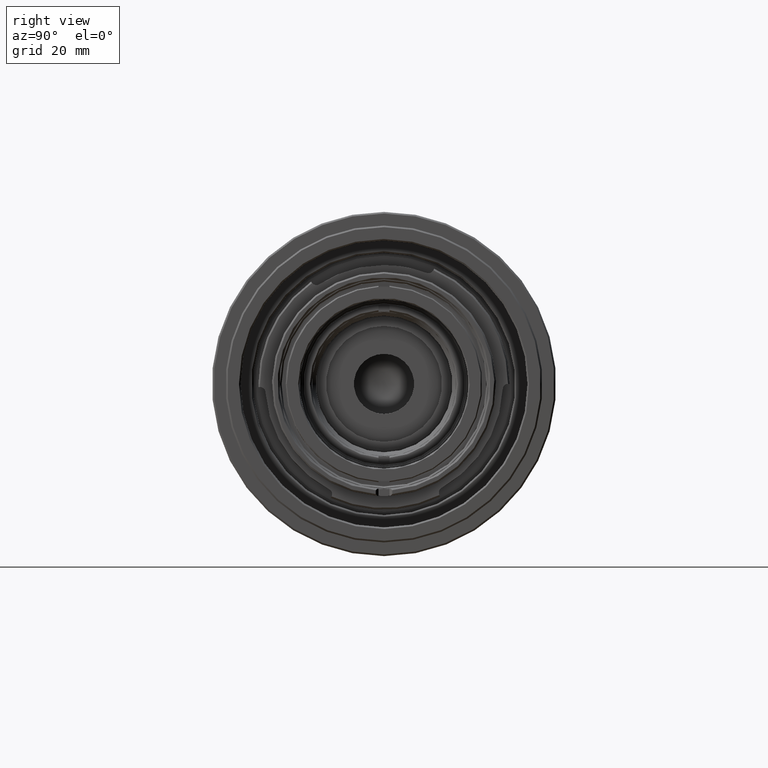
[diagram: clean part render]
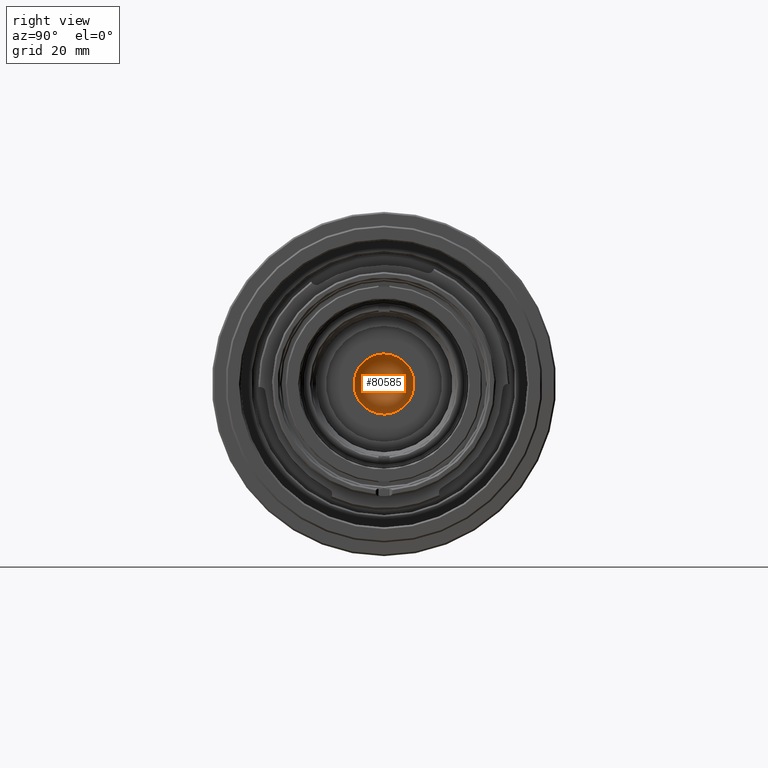
[diagram: same view with one face highlighted and labeled with its STEP entity id]
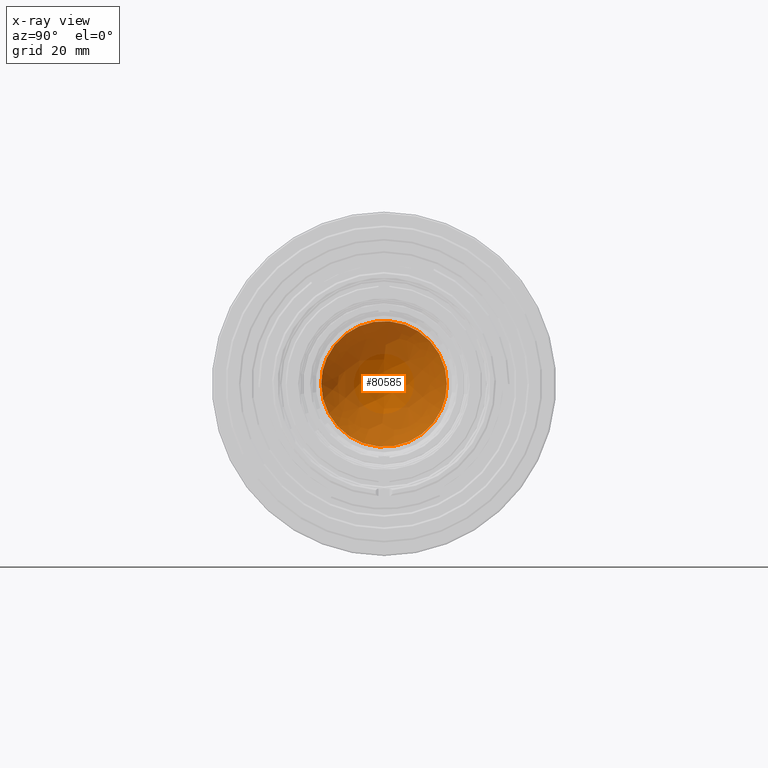
[diagram: x-ray of the same camera — body ghosted, the highlighted face saturated]
A machine part, right view. The second image highlights one B-rep face of the part: STEP entity #80585.
The next image is the same camera in x-ray: the body ghosted, the highlighted face saturated — about 77% of this face is hidden behind the body in this view.
In plain terms, the highlighted face is a freeform B-spline surface patch.
Its self-contained STEP definition (entity closure, byte-faithful):
#255 = CARTESIAN_POINT ( 'NONE',  ( -44.80845247734860900, -5.753007191074592800, -9.964664134588682400 ) ) ;
#1077 = CARTESIAN_POINT ( 'NONE',  ( -44.80845247734863100, 10.47788335748233200, -4.754593564172933100 ) ) ;
#3640 = CARTESIAN_POINT ( 'NONE',  ( -44.80845247734861700, 9.356293689348728300, 6.697082525206049300 ) ) ;
#4741 = CARTESIAN_POINT ( 'NONE',  ( -44.80845247734865200, 1.503754232936605800, 11.42634325561703400 ) ) ;
#5011 = CARTESIAN_POINT ( 'NONE',  ( -44.80845247734862400, -10.91137198061392000, 3.709559371525866600 ) ) ;
#6642 = VERTEX_POINT ( 'NONE', #47485 ) ;
#6680 = CARTESIAN_POINT ( 'NONE',  ( -44.80845247734862400, 5.084355458690351900, -10.32191706600309000 ) ) ;
#9891 = CARTESIAN_POINT ( 'NONE',  ( -54.84351934957655300, -5.004728254012164300, -5.768144989049128300 ) ) ;
#10030 = CARTESIAN_POINT ( 'NONE',  ( -44.80845247734862400, 5.089168799637594300, 10.31949533574741700 ) ) ;
#10579 = CARTESIAN_POINT ( 'NONE',  ( -44.80845247734862400, 7.022273019978745100, 9.138341699617182500 ) ) ;
#11403 = CARTESIAN_POINT ( 'NONE',  ( -44.80845247734862400, -1.872532536645306700, 11.35274921225121300 ) ) ;
#11633 = CARTESIAN_POINT ( 'NONE',  ( -44.80845247734861700, 11.49999897425665900, -1.260052562757507000E-015 ) ) ;
#11706 = CARTESIAN_POINT ( 'NONE',  ( -44.80845247734861700, -11.49999897425633200, -1.260052562757506600E-015 ) ) ;
#11934 = CARTESIAN_POINT ( 'NONE',  ( -44.80845247734862400, -11.42383983896479000, 1.519866178225232100 ) ) ;
#12351 = ORIENTED_EDGE ( 'NONE', *, *, #48961, .T. ) ;
#13049 = CARTESIAN_POINT ( 'NONE',  ( -44.80845247734862400, 7.007805545310112000, -9.148885702293814100 ) ) ;
#13332 = CARTESIAN_POINT ( 'NONE',  ( -44.80845247734862400, 9.764901558766236900, -6.085798936411796600 ) ) ;
#13604 = CARTESIAN_POINT ( 'NONE',  ( -44.80845247734862400, 2.978669706432953900, -11.13295866625508700 ) ) ;
#15870 = CARTESIAN_POINT ( 'NONE',  ( -44.80845247734861700, 11.49999897425665900, -1.260052562757507000E-015 ) ) ;
#15963 = VERTEX_POINT ( 'NONE', #11633 ) ;
#16015 = CARTESIAN_POINT ( 'NONE',  ( -54.84351934957655300, -5.004728254012164300, 5.768144989049122100 ) ) ;
#16411 = CARTESIAN_POINT ( 'NONE',  ( -44.80845247734860900, 2.985843278057903400, 11.11198426814783600 ) ) ;
#17521 = CARTESIAN_POINT ( 'NONE',  ( -44.80845247734862400, -3.695500496802925500, 10.91606960928534800 ) ) ;
#18061 = CARTESIAN_POINT ( 'NONE',  ( -44.80845247734862400, -4.739686864335111800, 10.48461614190675400 ) ) ;
#18101 = CARTESIAN_POINT ( 'NONE',  ( -44.80845247734860900, -11.11541532396850900, -2.973207052530145100 ) ) ;
#18335 = CARTESIAN_POINT ( 'NONE',  ( -44.80845247734861700, -11.49999897425633200, -1.260052562757506600E-015 ) ) ;
#19981 = CARTESIAN_POINT ( 'NONE',  ( -44.80845247734862400, 6.072965266795336000, -9.772892980732624600 ) ) ;
#21836 = CARTESIAN_POINT ( 'NONE',  ( -54.84351934957655300, 5.004728254012490200, 5.768144989049122100 ) ) ;
#22103 = CARTESIAN_POINT ( 'NONE',  ( -41.20107511579377800, 11.60323881107214200, -7.670401491549866600 ) ) ;
#22235 = CARTESIAN_POINT ( 'NONE',  ( -44.80845247734860900, 8.649844691849267500, 7.587743733534392900 ) ) ;
#22506 = CARTESIAN_POINT ( 'NONE',  ( -44.80845247734861700, 11.49999897425666400, 0.7596756894327033600 ) ) ;
#23627 = CARTESIAN_POINT ( 'NONE',  ( -44.80845247734862400, -10.47788335748201200, 4.754593564172932200 ) ) ;
#23937 = CARTESIAN_POINT ( 'NONE',  ( -44.80845247734859500, -8.396810706478854400, -7.866653003058684300 ) ) ;
#25821 = CARTESIAN_POINT ( 'NONE',  ( -44.80845247734858800, 0.7430977885588243600, -11.48221245707096600 ) ) ;
#26093 = CARTESIAN_POINT ( 'NONE',  ( -44.80845247734861700, -1.503754232936272100, -11.42634325561703400 ) ) ;
#26390 = CARTESIAN_POINT ( 'NONE',  ( -44.80845247734863100, 5.750702967758655000, -9.966045239932046900 ) ) ;
#27987 = CARTESIAN_POINT ( 'NONE',  ( -46.20065371288437500, 11.60323881107214200, 3.315238658489042800 ) ) ;
#28520 = CARTESIAN_POINT ( 'NONE',  ( -46.20065371288437500, -11.60323881107181500, 3.315238658489042800 ) ) ;
#28798 = CARTESIAN_POINT ( 'NONE',  ( -46.14481099012807200, -5.004728254012163400, 13.34564189343853800 ) ) ;
#28935 = CARTESIAN_POINT ( 'NONE',  ( -44.80845247734860900, 8.396810706479181300, 7.866653003058684300 ) ) ;
#29219 = CARTESIAN_POINT ( 'NONE',  ( -44.80845247734862400, 4.411244301982008200, 10.64005880782502800 ) ) ;
#30577 = CARTESIAN_POINT ( 'NONE',  ( -44.80845247734861700, -2.978669706432626600, 11.13295866625508200 ) ) ;
#30894 = CARTESIAN_POINT ( 'NONE',  ( -44.80845247734860900, -7.601137461462596600, -8.662298662141459700 ) ) ;
#31121 = CARTESIAN_POINT ( 'NONE',  ( -44.80845247734861700, -6.072965266795002900, 9.772892980732626400 ) ) ;
#31705 = CARTESIAN_POINT ( 'NONE',  ( -44.80845247734862400, 0.3671815992923235800, -11.50024971761664700 ) ) ;
#32250 = CARTESIAN_POINT ( 'NONE',  ( -44.80845247734860900, 4.739686864335436000, -10.48461614190675600 ) ) ;
#32512 = CARTESIAN_POINT ( 'NONE',  ( -44.80845247734861700, 1.872532536645636500, -11.35274921225121300 ) ) ;
#34109 = CARTESIAN_POINT ( 'NONE',  ( -41.20107511579377800, -11.60323881107181500, 7.670401491549870200 ) ) ;
#34667 = CARTESIAN_POINT ( 'NONE',  ( -46.14481099012807200, 5.004728254012490200, 13.34564189343853800 ) ) ;
#35910 = CARTESIAN_POINT ( 'NONE',  ( -44.80845247734861700, 10.76808924850741200, 4.054658041627607000 ) ) ;
#36979 = CARTESIAN_POINT ( 'NONE',  ( -44.80845247734862400, -9.764901558765904700, 6.085798936411786800 ) ) ;
#37238 = CARTESIAN_POINT ( 'NONE',  ( -44.80845247734858800, -0.7430977885584984000, 11.48221245707096300 ) ) ;
#37800 = CARTESIAN_POINT ( 'NONE',  ( -44.80845247734862400, -10.33524695578402400, -5.099091363435663400 ) ) ;
#38335 = CARTESIAN_POINT ( 'NONE',  ( -44.80845247734862400, -5.089168799637262100, -10.31949533574742300 ) ) ;
#38603 = CARTESIAN_POINT ( 'NONE',  ( -44.80845247734862400, 10.31454420866638200, -5.099253145948832600 ) ) ;
#42236 = CARTESIAN_POINT ( 'NONE',  ( -44.80845247734861700, 9.982080396363830500, 5.759576854239103500 ) ) ;
#43047 = CARTESIAN_POINT ( 'NONE',  ( -44.80845247734862400, -5.084355458690027700, 10.32191706600309400 ) ) ;
#43579 = CARTESIAN_POINT ( 'NONE',  ( -44.80845247734862400, -8.662779880128107700, 7.601456992880184900 ) ) ;
#43619 = CARTESIAN_POINT ( 'NONE',  ( -44.80845247734860900, -6.079623470343184600, -9.768882362445355100 ) ) ;
#43887 = CARTESIAN_POINT ( 'NONE',  ( -44.80845247734861700, -11.49999897425633000, -0.7596756894327058000 ) ) ;
#44700 = CARTESIAN_POINT ( 'NONE',  ( -44.80845247734862400, 9.958291107453703700, -5.764082155747850300 ) ) ;
#46854 = EDGE_LOOP ( 'NONE', ( #12351, #64435 ) ) ;
#47485 = CARTESIAN_POINT ( 'NONE',  ( -44.80845247734861700, -11.49999897425633200, -1.260052562757506600E-015 ) ) ;
#48122 = CARTESIAN_POINT ( 'NONE',  ( -44.80845247734862400, 11.42546381608049400, 1.506657826387712000 ) ) ;
#48677 = CARTESIAN_POINT ( 'NONE',  ( -44.80845247734863100, 7.601137461462921700, 8.662298662141456200 ) ) ;
#48956 = CARTESIAN_POINT ( 'NONE',  ( -44.80845247734861700, -9.958291107453382200, 5.764082155747835200 ) ) ;
#48961 = EDGE_CURVE ( 'NONE', #15963, #6642, #71010, .T. ) ;
#49270 = CARTESIAN_POINT ( 'NONE',  ( -44.80845247734859500, -9.130745463567091500, -7.001653764536373000 ) ) ;
#49505 = CARTESIAN_POINT ( 'NONE',  ( -44.80845247734861700, 0.7576760809230455000, 11.49948961086092100 ) ) ;
#51151 = CARTESIAN_POINT ( 'NONE',  ( -44.80845247734861700, -4.411244301981679600, -10.64005880782503700 ) ) ;
#51428 = CARTESIAN_POINT ( 'NONE',  ( -44.80845247734860900, 7.588748588688694100, -8.673914832636995700 ) ) ;
#51694 = CARTESIAN_POINT ( 'NONE',  ( -44.80845247734860900, -0.7576760809227162100, -11.49948961086091600 ) ) ;
#53816 = CARTESIAN_POINT ( 'NONE',  ( -46.14481099012806500, 5.004728254012490200, -13.34564189343854100 ) ) ;
#54515 = CARTESIAN_POINT ( 'NONE',  ( -44.80845247734862400, 3.705574361719112400, 10.89312503859470400 ) ) ;
#55065 = CARTESIAN_POINT ( 'NONE',  ( -44.80845247734861700, 10.89655380281556800, 3.695609993476284900 ) ) ;
#55615 = CARTESIAN_POINT ( 'NONE',  ( -44.80845247734861700, -11.49999897425633200, 0.7596756894326993600 ) ) ;
#55885 = CARTESIAN_POINT ( 'NONE',  ( -44.80845247734860900, -7.007805545309777200, 9.148885702293812400 ) ) ;
#56165 = CARTESIAN_POINT ( 'NONE',  ( -44.80845247734860200, -1.496915941283745400, 11.40844598959063200 ) ) ;
#56442 = CARTESIAN_POINT ( 'NONE',  ( -44.80845247734861700, -11.12910557213403000, 2.992844638521606100 ) ) ;
#56742 = CARTESIAN_POINT ( 'NONE',  ( -44.80845247734860200, -11.42546381608017500, -1.506657826387722600 ) ) ;
#57270 = CARTESIAN_POINT ( 'NONE',  ( -44.80845247734860900, 9.139884176630381800, -7.019515125802862500 ) ) ;
#57544 = CARTESIAN_POINT ( 'NONE',  ( -44.80845247734861700, 11.49999897425665900, -1.260052562757507000E-015 ) ) ;
#57707 =( BOUNDED_SURFACE ( )  B_SPLINE_SURFACE ( 3, 3, ( 
 ( #22103, #66901, #27987, #66623 ),
 ( #53816, #60508, #21836, #34667 ),
 ( #66338, #9891, #16015, #28798 ),
 ( #78759, #59676, #28520, #34109 ) ),
 .UNSPECIFIED., .F., .F., .F. ) 
 B_SPLINE_SURFACE_WITH_KNOTS ( ( 4, 4 ),
 ( 4, 4 ),
 ( 0.0000000000000000000, 1.000000000000000000 ),
 ( 0.0000000000000000000, 1.000000000000000000 ),
 .UNSPECIFIED. ) 
 GEOMETRIC_REPRESENTATION_ITEM ( )  RATIONAL_B_SPLINE_SURFACE ( (
 ( 1.000000000000000000, 0.7712266779455876400, 0.7712266779455876400, 1.000000000000000000),
 ( 0.7728184376956983600, 0.5960181963591525400, 0.5960181963591525400, 0.7728184376956983600),
 ( 0.7728184376956983600, 0.5960181963591525400, 0.5960181963591525400, 0.7728184376956983600),
 ( 1.000000000000000000, 0.7712266779455876400, 0.7712266779455876400, 1.000000000000000000) ) ) 
 REPRESENTATION_ITEM ( '' )  SURFACE ( )  );
#58089 = CARTESIAN_POINT ( 'NONE',  ( -44.80845247734862400, 8.662779880128427500, -7.601456992880193800 ) ) ;
#59676 = CARTESIAN_POINT ( 'NONE',  ( -46.20065371288437500, -11.60323881107181500, -3.315238658489038800 ) ) ;
#60508 = CARTESIAN_POINT ( 'NONE',  ( -54.84351934957655300, 5.004728254012490200, -5.768144989049128300 ) ) ;
#60885 = B_SPLINE_CURVE_WITH_KNOTS ( 'NONE', 3,
 ( #11706, #43887, #56742, #81357, #18101, #69521, #62592, #37800, #68438, #82166, #49270, #68987, #23937, #30894, #75325, #43619, #255, #38335, #51151, #69778, #70317, #64191, #26093, #51694, #31705, #25821, #70589, #32512, #13604, #76120, #32250, #6680, #26390, #19981, #13049, #51428, #58089, #57270, #13332, #44700, #38603, #1077, #76628, #76910, #63910, #64459, #57544 ),
 .UNSPECIFIED., .F., .F.,
 ( 4, 2, 2, 2, 2, 2, 2, 2, 2, 1, 2, 2, 2, 2, 2, 2, 2, 2, 2, 2, 2, 2, 2, 4 ),
 ( 0.03594687407043491900, 0.03819355369983711000, 0.03931689351453820900, 0.04044023332923930800, 0.04268691295864150000, 0.04381025277334259200, 0.04493359258804369100, 0.04718027221744587600, 0.04830361203214696100, 0.04942695184684805400, 0.05055029166154914600, 0.05167363147625023100, 0.05392031110565240900, 0.05504365092035350100, 0.05616699073505459400, 0.05841367036445677100, 0.05953701017915785700, 0.06066034999385894900, 0.06290702962326112600, 0.06515370925266331100, 0.06627704906736439600, 0.06740038888206548200, 0.06964706851146765200, 0.07189374814086983700 ),
 .UNSPECIFIED. ) ;
#62592 = CARTESIAN_POINT ( 'NONE',  ( -44.80845247734861700, -10.76808924850709000, -4.054658041627615000 ) ) ;
#63910 = CARTESIAN_POINT ( 'NONE',  ( -44.80845247734862400, 11.42383983896511300, -1.519866178225223400 ) ) ;
#64191 = CARTESIAN_POINT ( 'NONE',  ( -44.80845247734860900, -2.616973146504710400, -11.20466791580466500 ) ) ;
#64435 = ORIENTED_EDGE ( 'NONE', *, *, #75711, .T. ) ;
#64459 = CARTESIAN_POINT ( 'NONE',  ( -44.80845247734862400, 11.49999897425665900, -0.7596756894327031400 ) ) ;
#66338 = CARTESIAN_POINT ( 'NONE',  ( -46.14481099012806500, -5.004728254012163400, -13.34564189343854100 ) ) ;
#66623 = CARTESIAN_POINT ( 'NONE',  ( -41.20107511579377800, 11.60323881107214200, 7.670401491549870200 ) ) ;
#66756 = CARTESIAN_POINT ( 'NONE',  ( -44.80845247734861700, 6.079623470343507900, 9.768882362445353400 ) ) ;
#66901 = CARTESIAN_POINT ( 'NONE',  ( -46.20065371288437500, 11.60323881107214200, -3.315238658489038800 ) ) ;
#67040 = CARTESIAN_POINT ( 'NONE',  ( -44.80845247734860900, 9.130745463567429000, 7.001653764536374800 ) ) ;
#67581 = CARTESIAN_POINT ( 'NONE',  ( -44.80845247734861700, 11.20643087544298700, 2.608869418817474800 ) ) ;
#68438 = CARTESIAN_POINT ( 'NONE',  ( -44.80845247734860900, -9.982080396363496500, -5.759576854239108800 ) ) ;
#68987 = CARTESIAN_POINT ( 'NONE',  ( -44.80845247734858800, -8.649844691848930000, -7.587743733534392000 ) ) ;
#69521 = CARTESIAN_POINT ( 'NONE',  ( -44.80845247734862400, -10.89655380281523400, -3.695609993476281400 ) ) ;
#69778 = CARTESIAN_POINT ( 'NONE',  ( -44.80845247734860900, -3.705574361718777100, -10.89312503859470200 ) ) ;
#70317 = CARTESIAN_POINT ( 'NONE',  ( -44.80845247734862400, -2.985843278057572100, -11.11198426814783800 ) ) ;
#70589 = CARTESIAN_POINT ( 'NONE',  ( -44.80845247734859500, 1.496915941284070500, -11.40844598959063600 ) ) ;
#71010 = B_SPLINE_CURVE_WITH_KNOTS ( 'NONE', 3,
 ( #15870, #22506, #48122, #67581, #79983, #55065, #35910, #80251, #42236, #3640, #67040, #22235, #28935, #48677, #10579, #66756, #79698, #10030, #29219, #54515, #16411, #81864, #4741, #49505, #75286, #37238, #56165, #11403, #30577, #17521, #18061, #43047, #81320, #31121, #55885, #74479, #43579, #81060, #36979, #48956, #81591, #23627, #5011, #56442, #11934, #55615, #18335 ),
 .UNSPECIFIED., .F., .F.,
 ( 4, 2, 2, 2, 2, 2, 2, 2, 2, 1, 2, 2, 2, 2, 2, 2, 2, 2, 2, 2, 2, 2, 2, 4 ),
 ( 0.0000000000000000000, 0.002246679629402188000, 0.003370019444103281600, 0.004493359258804376100, 0.006740038888206563300, 0.007863378702907658200, 0.008986718517608752200, 0.01123339814701094000, 0.01235673796171203100, 0.01348007777641312300, 0.01460341759111421500, 0.01572675740581530600, 0.01797343703521748700, 0.01909677684991858300, 0.02022011666461966800, 0.02246679629402185600, 0.02359013610872294200, 0.02471347592342403400, 0.02696015555282621100, 0.02920683518222839600, 0.03033017499692948500, 0.03145351481163057700, 0.03370019444103274800, 0.03594687407043491900 ),
 .UNSPECIFIED. ) ;
#72392 = FACE_OUTER_BOUND ( 'NONE', #46854, .T. ) ;
#74479 = CARTESIAN_POINT ( 'NONE',  ( -44.80845247734861700, -7.588748588688377900, 8.673914832636988600 ) ) ;
#75286 = CARTESIAN_POINT ( 'NONE',  ( -44.80845247734859500, -0.3671815992919967900, 11.50024971761664200 ) ) ;
#75325 = CARTESIAN_POINT ( 'NONE',  ( -44.80845247734858800, -7.022273019978420000, -9.138341699617182500 ) ) ;
#75711 = EDGE_CURVE ( 'NONE', #6642, #15963, #60885, .T. ) ;
#76120 = CARTESIAN_POINT ( 'NONE',  ( -44.80845247734860900, 3.695500496803248800, -10.91606960928534600 ) ) ;
#76628 = CARTESIAN_POINT ( 'NONE',  ( -44.80845247734863100, 10.91137198061423600, -3.709559371525865200 ) ) ;
#76910 = CARTESIAN_POINT ( 'NONE',  ( -44.80845247734861700, 11.12910557213435100, -2.992844638521593200 ) ) ;
#78759 = CARTESIAN_POINT ( 'NONE',  ( -41.20107511579377800, -11.60323881107181500, -7.670401491549866600 ) ) ;
#79698 = CARTESIAN_POINT ( 'NONE',  ( -44.80845247734861700, 5.753007191074926800, 9.964664134588675300 ) ) ;
#79983 = CARTESIAN_POINT ( 'NONE',  ( -44.80845247734861700, 11.11541532396884000, 2.973207052530148200 ) ) ;
#80251 = CARTESIAN_POINT ( 'NONE',  ( -44.80845247734860900, 10.33524695578434900, 5.099091363435657200 ) ) ;
#80585 = ADVANCED_FACE ( 'NONE', ( #72392 ), #57707, .F. ) ;
#81060 = CARTESIAN_POINT ( 'NONE',  ( -44.80845247734861700, -9.139884176630060300, 7.019515125802851000 ) ) ;
#81320 = CARTESIAN_POINT ( 'NONE',  ( -44.80845247734861700, -5.750702967758327200, 9.966045239932050500 ) ) ;
#81357 = CARTESIAN_POINT ( 'NONE',  ( -44.80845247734859500, -11.20643087544266900, -2.608869418817486400 ) ) ;
#81591 = CARTESIAN_POINT ( 'NONE',  ( -44.80845247734862400, -10.31454420866606500, 5.099253145948820200 ) ) ;
#81864 = CARTESIAN_POINT ( 'NONE',  ( -44.80845247734863800, 2.616973146505044800, 11.20466791580466100 ) ) ;
#82166 = CARTESIAN_POINT ( 'NONE',  ( -44.80845247734861700, -9.356293689348399700, -6.697082525206053700 ) ) ;